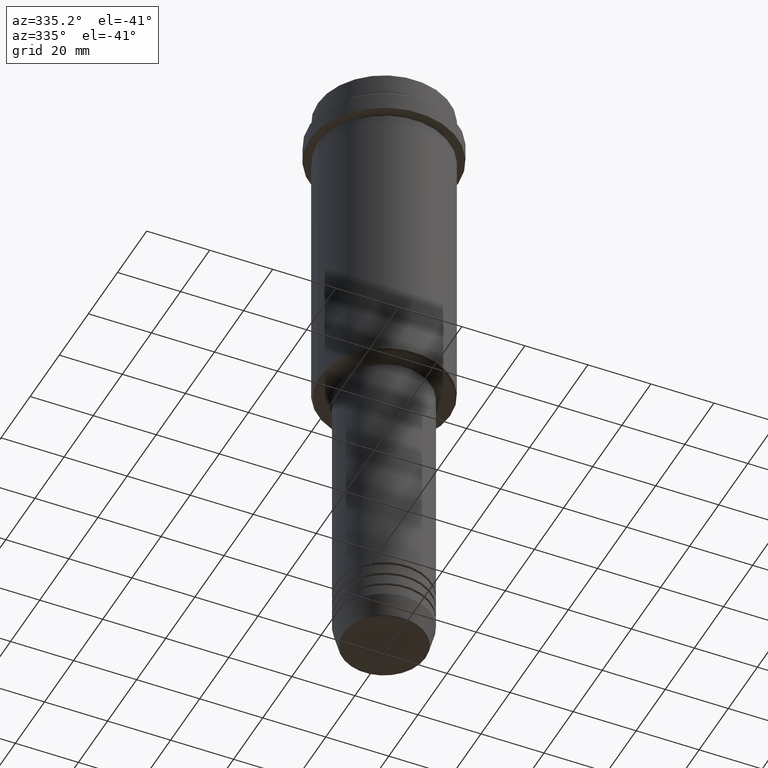
[diagram: clean part render]
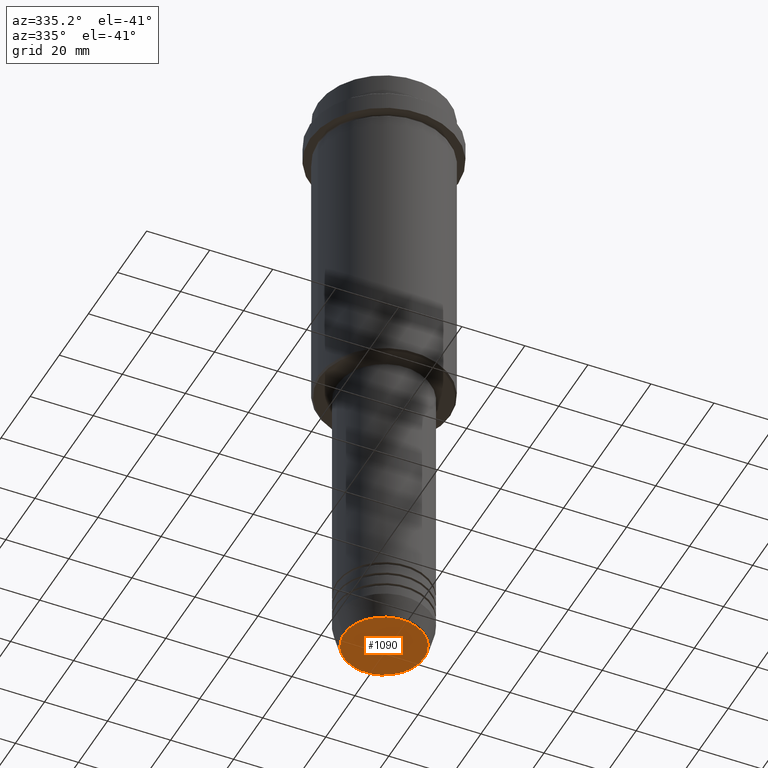
[diagram: same view with one face highlighted and labeled with its STEP entity id]
A machine part, auxiliary view. The second image highlights one B-rep face of the part: STEP entity #1090.
In plain terms, the highlighted planar face has unit normal (0, -0, 1).
Its self-contained STEP definition (entity closure, byte-faithful):
#76 = DIRECTION ( 'NONE',  ( 0.000000000000000000, 0.000000000000000000, -1.000000000000000000 ) ) ;
#150 = DIRECTION ( 'NONE',  ( 1.000000000000000000, 0.000000000000000000, 0.000000000000000000 ) ) ;
#193 = AXIS2_PLACEMENT_3D ( 'NONE', #635, #76, #1387 ) ;
#227 = ORIENTED_EDGE ( 'NONE', *, *, #497, .T. ) ;
#362 = DIRECTION ( 'NONE',  ( 0.000000000000000000, -0.000000000000000000, 1.000000000000000000 ) ) ;
#387 = ORIENTED_EDGE ( 'NONE', *, *, #794, .T. ) ;
#397 = CIRCLE ( 'NONE', #586, 12.74069215899265828 ) ;
#409 = DIRECTION ( 'NONE',  ( 0.000000000000000000, 0.000000000000000000, -1.000000000000000000 ) ) ;
#482 = VERTEX_POINT ( 'NONE', #765 ) ;
#497 = EDGE_CURVE ( 'NONE', #482, #1177, #654, .T. ) ;
#586 = AXIS2_PLACEMENT_3D ( 'NONE', #722, #409, #1159 ) ;
#635 = CARTESIAN_POINT ( 'NONE',  ( 0.000000000000000000, 0.000000000000000000, -200.0000000000000000 ) ) ;
#654 = CIRCLE ( 'NONE', #193, 12.74069215899265828 ) ;
#722 = CARTESIAN_POINT ( 'NONE',  ( 0.000000000000000000, 0.000000000000000000, -200.0000000000000000 ) ) ;
#765 = CARTESIAN_POINT ( 'NONE',  ( -12.74069215899265828, 1.589857736427681035E-15, -200.0000000000000000 ) ) ;
#791 = FACE_OUTER_BOUND ( 'NONE', #1206, .T. ) ;
#794 = EDGE_CURVE ( 'NONE', #1177, #482, #397, .T. ) ;
#858 = CARTESIAN_POINT ( 'NONE',  ( 12.74069215899265828, 0.000000000000000000, -200.0000000000000000 ) ) ;
#912 = PLANE ( 'NONE',  #996 ) ;
#996 = AXIS2_PLACEMENT_3D ( 'NONE', #1040, #362, #150 ) ;
#1040 = CARTESIAN_POINT ( 'NONE',  ( 0.000000000000000000, 0.000000000000000000, -200.0000000000000000 ) ) ;
#1090 = ADVANCED_FACE ( 'NONE', ( #791 ), #912, .F. ) ;
#1159 = DIRECTION ( 'NONE',  ( 1.000000000000000000, 0.000000000000000000, 0.000000000000000000 ) ) ;
#1177 = VERTEX_POINT ( 'NONE', #858 ) ;
#1206 = EDGE_LOOP ( 'NONE', ( #387, #227 ) ) ;
#1387 = DIRECTION ( 'NONE',  ( 1.000000000000000000, 0.000000000000000000, 0.000000000000000000 ) ) ;